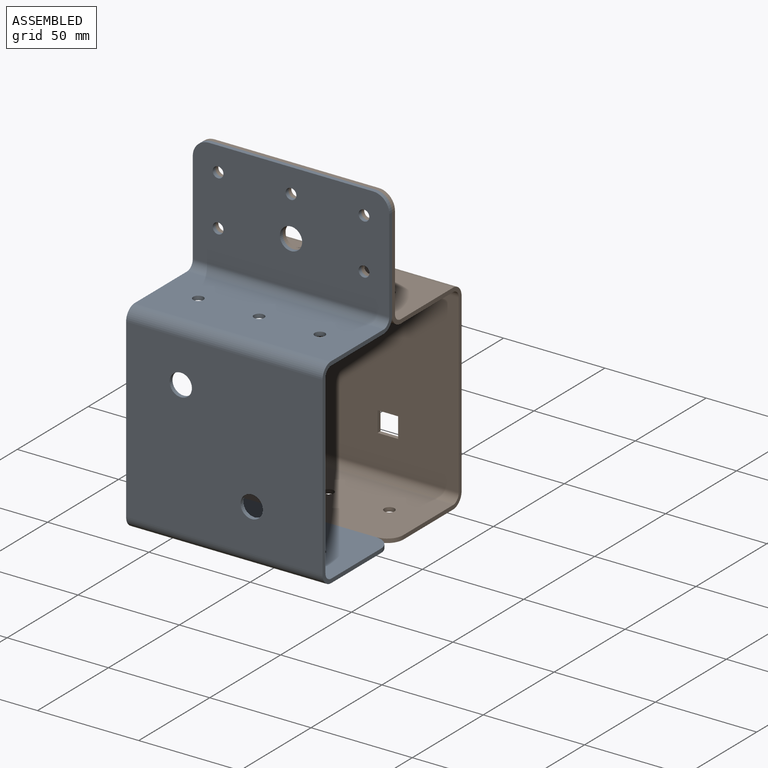
[diagram: assembled view]
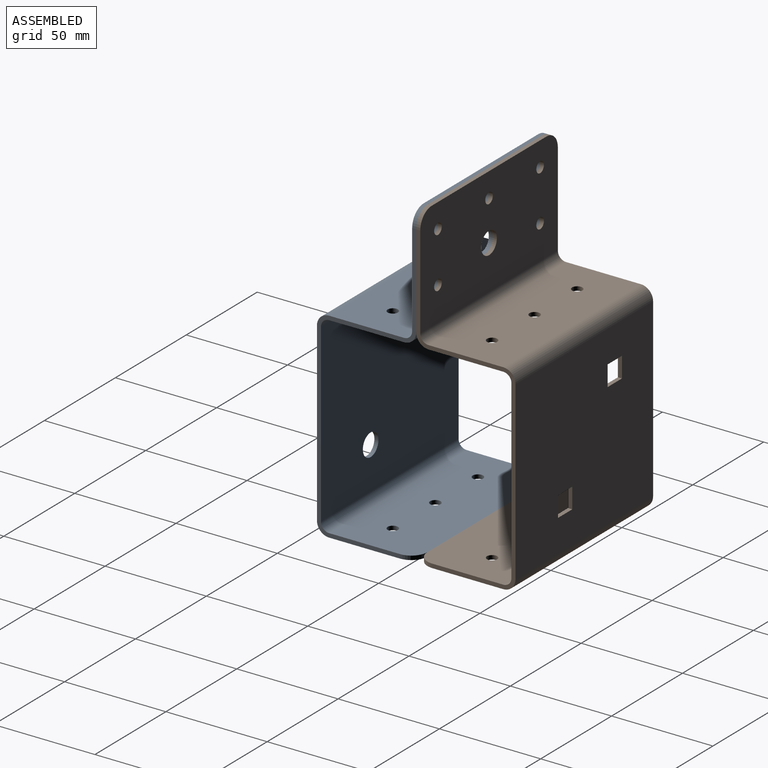
[diagram: assembled view, second angle]
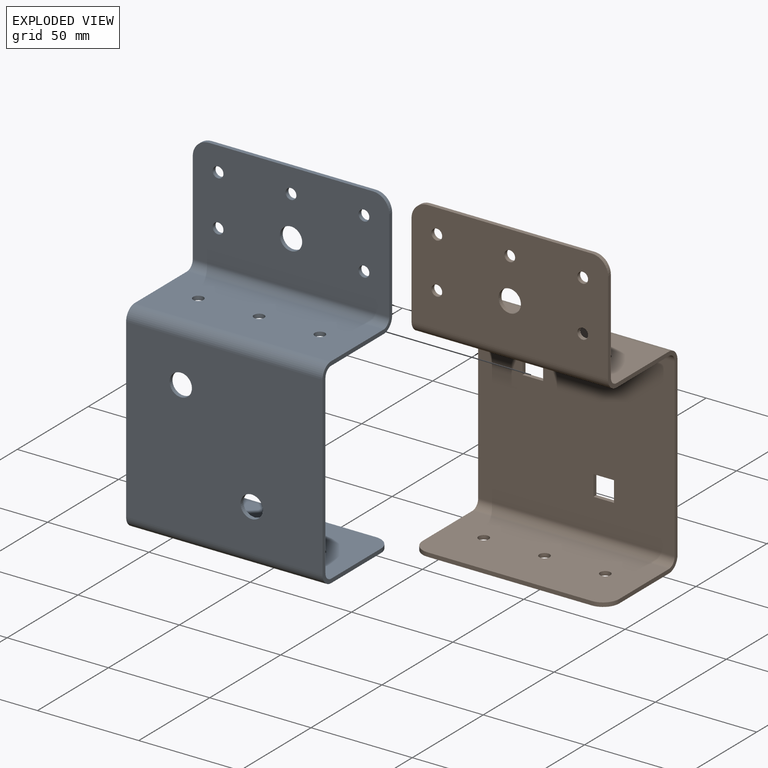
[diagram: exploded view]
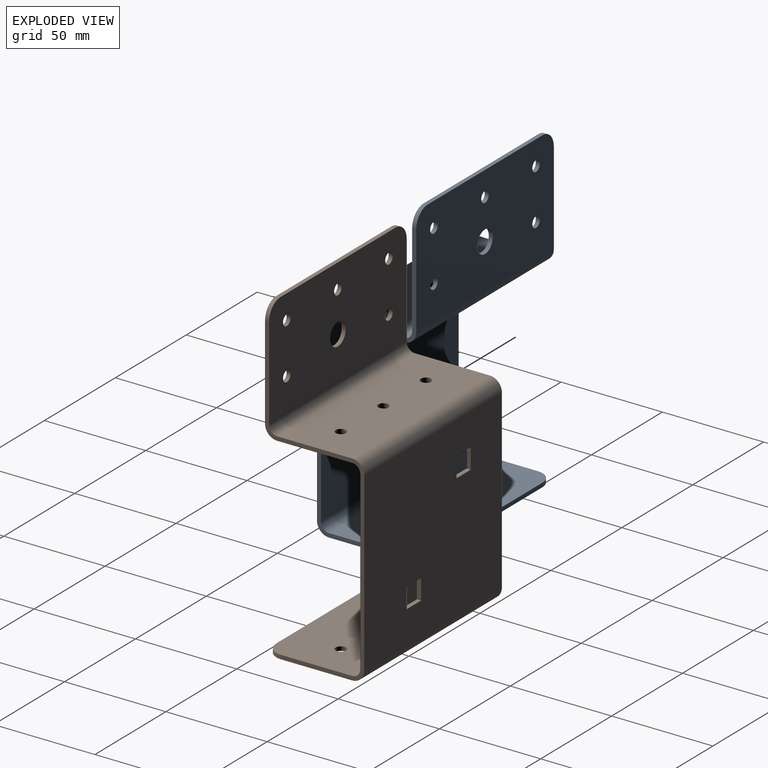
[diagram: exploded view, second angle]
ASSEMBLY  parts=2 mates=2
PART A: 48 faces, bbox 157x97x49 mm
  f0: plane 87x2mm, normal (0,-1,0), area 174mm2, adj f4,f5,f28,f39
  f1: cylinder r=5.5mm len=11mm, axis (0,0,1), area 69.1mm2, adj f4,f5
  f2: cylinder r=5.5mm len=11mm, axis (0,0,1), area 69.1mm2, adj f4,f5
  f3: plane 87x2mm, normal (0,1,0), area 174mm2, adj f4,f5,f27,f38
  f4: plane 97x87mm, normal (0,0,-1), area 8248.9mm2, adj f0,f1,f2,f3,f29,f40
  f5: plane 97x87mm, normal (0,0,1), area 8248.9mm2, adj f0,f1,f2,f3,f30,f41
  f6: plane 37x2mm, normal (0,1,0), area 74mm2, adj f8,f9,f24,f27
  f7: plane 37x2mm, normal (0,-1,0), area 74mm2, adj f8,f9,f23,f28
  f8: plane 97x37mm, normal (-1,0,0), area 3527.7mm2, adj f6,f7,f26,f29,f43,f45,f47
  f9: plane 97x37mm, normal (1,0,0), area 3527.7mm2, adj f6,f7,f25,f30,f43,f45,f47
  f10: plane 81x2mm, normal (-1,0,0), area 162mm2, adj f19,f20,f21,f22
  f11: plane 46x2mm, normal (0,1,0), area 92mm2, adj f19,f20,f21,f24
  f12: cylinder r=5.5mm len=11mm, axis (0,0,-1), area 69.1mm2, adj f19,f20
  f13: cylinder r=2.65mm len=5.3mm, axis (0,0,-1), area 33.3mm2, adj f19,f20
  f14: cylinder r=2.65mm len=5.3mm, axis (0,0,-1), area 33.3mm2, adj f19,f20
  f15: cylinder r=2.65mm len=5.3mm, axis (0,0,-1), area 33.3mm2, adj f19,f20
  f16: cylinder r=2.65mm len=5.3mm, axis (0,0,-1), area 33.3mm2, adj f19,f20
  f17: cylinder r=2.65mm len=5.3mm, axis (0,0,-1), area 33.3mm2, adj f19,f20
  f18: plane 46x2mm, normal (0,-1,0), area 92mm2, adj f19,f20,f22,f23
  f19: plane 97x54mm, normal (0,0,-1), area 5005.2mm2, adj f10,f11,f12,f13,f14,f15,f16,f17
  f20: plane 97x54mm, normal (0,0,1), area 5005.2mm2, adj f10,f11,f12,f13,f14,f15,f16,f17
  f21: cylinder r=8mm len=8mm, axis (0,0,-1), area 25.1mm2, adj f10,f11,f19,f20
  f22: cylinder r=8mm len=8mm, axis (0,0,-1), area 25.1mm2, adj f10,f18,f19,f20
  f23: plane 6x6mm, normal (0,-1,0), area 15.7mm2, adj f7,f18,f25,f26
  f24: plane 6x6mm, normal (0,1,0), area 15.7mm2, adj f6,f11,f25,f26
  f25: cylinder r=6mm len=97mm, axis (0,-1,0), area 914.2mm2, adj f9,f20,f23,f24
  f26: cylinder r=4mm len=97mm, axis (0,-1,0), area 609.5mm2, adj f8,f19,f23,f24
  f27: plane 6x6mm, normal (0,1,0), area 15.7mm2, adj f3,f6,f29,f30
  f28: plane 6x6mm, normal (0,-1,0), area 15.7mm2, adj f0,f7,f29,f30
  f29: cylinder r=6mm len=97mm, axis (0,1,0), area 914.2mm2, adj f4,f8,f27,f28
  f30: cylinder r=4mm len=97mm, axis (0,1,0), area 609.5mm2, adj f5,f9,f27,f28
  f31: plane 81x2mm, normal (0,0,1), area 162mm2, adj f34,f35,f36,f37
  f32: plane 35x2mm, normal (0,-1,0), area 70mm2, adj f34,f35,f37,f39
  f33: plane 35x2mm, normal (0,1,0), area 70mm2, adj f34,f35,f36,f38
  f34: plane 97x43mm, normal (1,0,0), area 4082.2mm2, adj f31,f32,f33,f36,f37,f40,f42,f44
  f35: plane 97x43mm, normal (-1,0,0), area 4082.2mm2, adj f31,f32,f33,f36,f37,f41,f42,f44
  f36: cylinder r=8mm len=8mm, axis (1,0,0), area 25.1mm2, adj f31,f33,f34,f35
  f37: cylinder r=8mm len=8mm, axis (1,0,0), area 25.1mm2, adj f31,f32,f34,f35
  f38: plane 6x6mm, normal (0,1,0), area 15.7mm2, adj f3,f33,f40,f41
  f39: plane 6x6mm, normal (0,-1,0), area 15.7mm2, adj f0,f32,f40,f41
  f40: cylinder r=6mm len=97mm, axis (0,1,0), area 914.2mm2, adj f4,f34,f38,f39
  f41: cylinder r=4mm len=97mm, axis (0,1,0), area 609.5mm2, adj f5,f35,f38,f39
  f42: cylinder r=2.55mm len=5.1mm, axis (-1,0,0), area 32mm2, adj f34,f35
  f43: cylinder r=2.55mm len=5.1mm, axis (-1,0,0), area 32mm2, adj f8,f9
  f44: cylinder r=2.55mm len=5.1mm, axis (-1,0,0), area 32mm2, adj f34,f35
  f45: cylinder r=2.55mm len=5.1mm, axis (-1,0,0), area 32mm2, adj f8,f9
  f46: cylinder r=2.55mm len=5.1mm, axis (-1,0,0), area 32mm2, adj f34,f35
  f47: cylinder r=2.55mm len=5.1mm, axis (-1,0,0), area 32mm2, adj f8,f9
PART B: 54 faces, bbox 157x97x49 mm
  f0: plane 87x2mm, normal (0,-1,0), area 174mm2, adj f10,f11,f37,f51
  f1: plane 10.1x2mm, normal (1,0,0), area 20.2mm2, adj f2,f8,f10,f11
  f2: plane 10.1x2mm, normal (0,1,0), area 20.2mm2, adj f1,f3,f10,f11
  f3: plane 10.1x2mm, normal (-1,0,0), area 20.2mm2, adj f2,f8,f10,f11
  f4: plane 10.1x2mm, normal (0,1,0), area 20.2mm2, adj f5,f7,f10,f11
  f5: plane 10.1x2mm, normal (-1,0,0), area 20.2mm2, adj f4,f6,f10,f11
  f6: plane 10.1x2mm, normal (0,-1,0), area 20.2mm2, adj f5,f7,f10,f11
  f7: plane 10.1x2mm, normal (1,0,0), area 20.2mm2, adj f4,f6,f10,f11
  f8: plane 10.1x2mm, normal (0,-1,0), area 20.2mm2, adj f1,f3,f10,f11
  f9: plane 87x2mm, normal (0,1,0), area 174mm2, adj f10,f11,f36,f50
  f10: plane 97x87mm, normal (0,0,-1), area 8235mm2, adj f0,f1,f2,f3,f4,f5,f6,f7
  f11: plane 97x87mm, normal (0,0,1), area 8235mm2, adj f0,f1,f2,f3,f4,f5,f6,f7
  f12: plane 37x2mm, normal (0,1,0), area 74mm2, adj f17,f18,f33,f36
  f13: cylinder r=2.55mm len=5.1mm, axis (-1,0,0), area 32mm2, adj f17,f18
  f14: cylinder r=2.55mm len=5.1mm, axis (-1,0,0), area 32mm2, adj f17,f18
  f15: cylinder r=2.55mm len=5.1mm, axis (-1,0,0), area 32mm2, adj f17,f18
  f16: plane 37x2mm, normal (0,-1,0), area 74mm2, adj f17,f18,f32,f37
  f17: plane 97x37mm, normal (-1,0,0), area 3527.7mm2, adj f12,f13,f14,f15,f16,f35,f38
  f18: plane 97x37mm, normal (1,0,0), area 3527.7mm2, adj f12,f13,f14,f15,f16,f34,f39
  f19: plane 81x2mm, normal (-1,0,0), area 162mm2, adj f28,f29,f30,f31
  f20: plane 46x2mm, normal (0,1,0), area 92mm2, adj f28,f29,f30,f33
  f21: cylinder r=5.5mm len=11mm, axis (0,0,-1), area 69.1mm2, adj f28,f29
  f22: cylinder r=2.65mm len=5.3mm, axis (0,0,-1), area 33.3mm2, adj f28,f29
  f23: cylinder r=2.65mm len=5.3mm, axis (0,0,-1), area 33.3mm2, adj f28,f29
  f24: cylinder r=2.65mm len=5.3mm, axis (0,0,-1), area 33.3mm2, adj f28,f29
  f25: cylinder r=2.65mm len=5.3mm, axis (0,0,-1), area 33.3mm2, adj f28,f29
  f26: cylinder r=2.65mm len=5.3mm, axis (0,0,-1), area 33.3mm2, adj f28,f29
  f27: plane 46x2mm, normal (0,-1,0), area 92mm2, adj f28,f29,f31,f32
  f28: plane 97x54mm, normal (0,0,-1), area 5005.2mm2, adj f19,f20,f21,f22,f23,f24,f25,f26
  f29: plane 97x54mm, normal (0,0,1), area 5005.2mm2, adj f19,f20,f21,f22,f23,f24,f25,f26
  f30: cylinder r=8mm len=8mm, axis (0,0,-1), area 25.1mm2, adj f19,f20,f28,f29
  f31: cylinder r=8mm len=8mm, axis (0,0,-1), area 25.1mm2, adj f19,f27,f28,f29
  f32: plane 6x6mm, normal (0,-1,0), area 15.7mm2, adj f16,f27,f34,f35
  f33: plane 6x6mm, normal (0,1,0), area 15.7mm2, adj f12,f20,f34,f35
  f34: cylinder r=6mm len=97mm, axis (0,-1,0), area 914.2mm2, adj f18,f29,f32,f33
  f35: cylinder r=4mm len=97mm, axis (0,-1,0), area 609.5mm2, adj f17,f28,f32,f33
  f36: plane 6x6mm, normal (0,1,0), area 15.7mm2, adj f9,f12,f38,f39
  f37: plane 6x6mm, normal (0,-1,0), area 15.7mm2, adj f0,f16,f38,f39
  f38: cylinder r=6mm len=97mm, axis (0,1,0), area 914.2mm2, adj f10,f17,f36,f37
  f39: cylinder r=4mm len=97mm, axis (0,1,0), area 609.5mm2, adj f11,f18,f36,f37
  f40: plane 81x2mm, normal (0,0,1), area 162mm2, adj f46,f47,f48,f49
  f41: plane 35x2mm, normal (0,-1,0), area 70mm2, adj f46,f47,f49,f51
  f42: cylinder r=2.55mm len=5.1mm, axis (1,0,0), area 32mm2, adj f46,f47
  f43: cylinder r=2.55mm len=5.1mm, axis (1,0,0), area 32mm2, adj f46,f47
  f44: cylinder r=2.55mm len=5.1mm, axis (1,0,0), area 32mm2, adj f46,f47
  f45: plane 35x2mm, normal (0,1,0), area 70mm2, adj f46,f47,f48,f50
  f46: plane 97x43mm, normal (1,0,0), area 4082.2mm2, adj f40,f41,f42,f43,f44,f45,f48,f49
  f47: plane 97x43mm, normal (-1,0,0), area 4082.2mm2, adj f40,f41,f42,f43,f44,f45,f48,f49
  f48: cylinder r=8mm len=8mm, axis (1,0,0), area 25.1mm2, adj f40,f45,f46,f47
  f49: cylinder r=8mm len=8mm, axis (1,0,0), area 25.1mm2, adj f40,f41,f46,f47
  f50: plane 6x6mm, normal (0,1,0), area 15.7mm2, adj f9,f45,f52,f53
  f51: plane 6x6mm, normal (0,-1,0), area 15.7mm2, adj f0,f41,f52,f53
  f52: cylinder r=6mm len=97mm, axis (0,1,0), area 914.2mm2, adj f10,f46,f50,f51
  f53: cylinder r=4mm len=97mm, axis (0,1,0), area 609.5mm2, adj f11,f47,f50,f51
PLACE A rot(axis=(-0.58,0.58,0.58),120deg) t=(81.23,6.42,56.67)mm fixed
PLACE B rot(axis=(0.58,0.58,-0.58),120deg) t=(-15.77,104.42,56.67)mm
MATE parallel A.f32 <-> B.f45  axis (1,0,0) through (81.23,29.92,-39.33)mm
MATE revolute B.f21 <-> A.f12  axis (0,-1,0) through (32.73,55.42,84.67)mm
